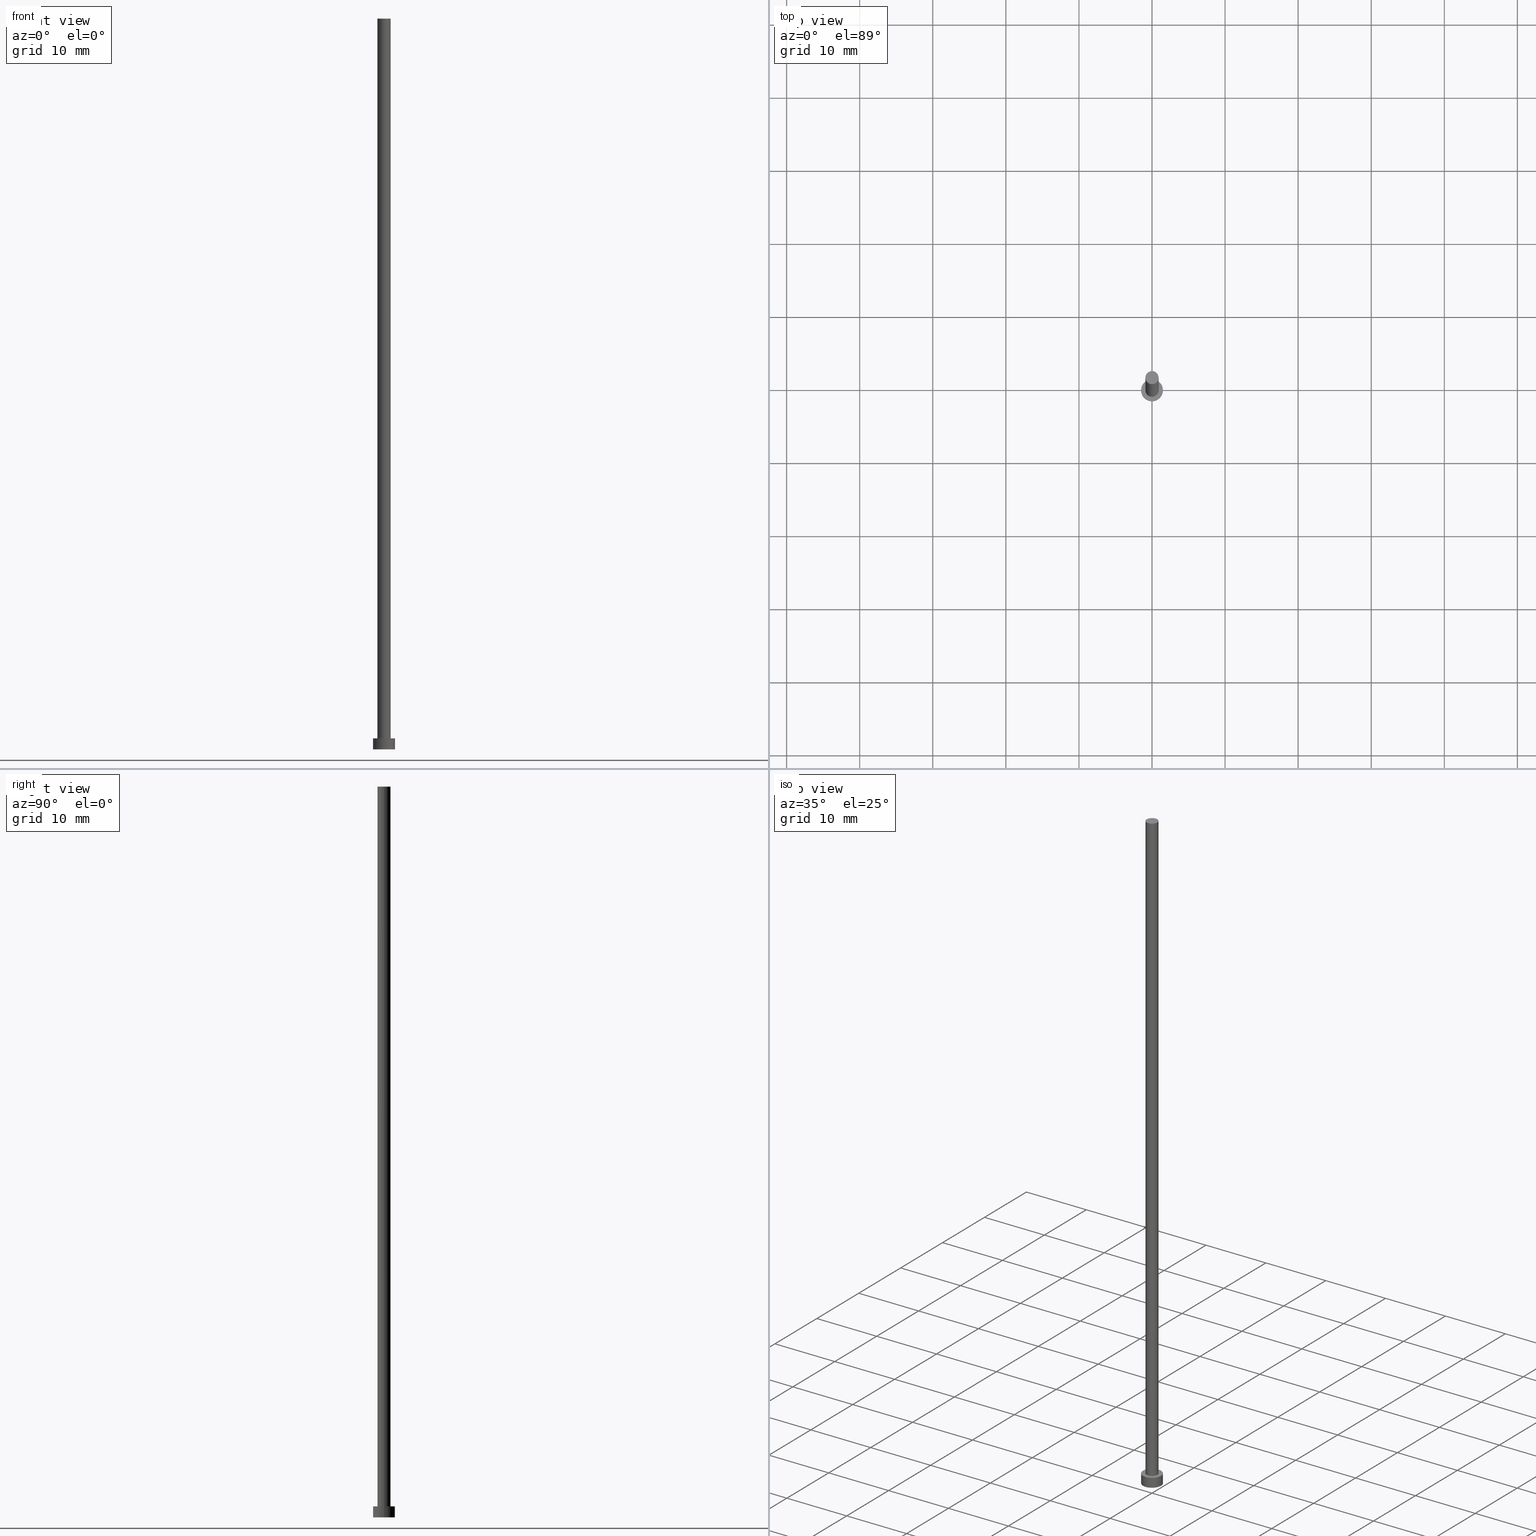
[diagram: canonical four-view strip — front | top / right | iso, engineering-drawing reading convention]
A machine part, canonical four-view strip (front | top / right | iso — engineering-drawing reading convention). The complete STEP part file that produces these views, byte-faithful:
ISO-10303-21;
HEADER;
FILE_DESCRIPTION (( 'STEP AP203' ),
    '1' );
FILE_NAME ('ceaa.STEP',
    '2023-02-13T14:57:31',
    ( '' ),
    ( '' ),
    'SwSTEP 2.0',
    'SolidWorks 2019',
    '' );
FILE_SCHEMA (( 'CONFIG_CONTROL_DESIGN' ));
ENDSEC;

DATA;
#1 = DIRECTION ( 'NONE',  ( -1.000000000000000000, 0.000000000000000000, 0.000000000000000000 ) ) ;
#2 = ORIENTED_EDGE ( 'NONE', *, *, #22, .F. ) ;
#3 = EDGE_LOOP ( 'NONE', ( #76, #69, #252, #17 ) ) ;
#4 = CARTESIAN_POINT ( 'NONE',  ( 0.000000000000000000, 0.000000000000000000, 100.0000000000000000 ) ) ;
#5 = DIRECTION ( 'NONE',  ( 1.000000000000000000, 0.000000000000000000, 0.000000000000000000 ) ) ;
#6 = CARTESIAN_POINT ( 'NONE',  ( 0.000000000000000000, 0.000000000000000000, 100.0000000000000000 ) ) ;
#7 = EDGE_LOOP ( 'NONE', ( #2, #223 ) ) ;
#8 = DIRECTION ( 'NONE',  ( -1.000000000000000000, 0.000000000000000000, 0.000000000000000000 ) ) ;
#9 = PERSON_AND_ORGANIZATION ( #202, #86 ) ;
#10 = CARTESIAN_POINT ( 'NONE',  ( 0.000000000000000000, 0.000000000000000000, 1.500000000000000000 ) ) ;
#11 = VERTEX_POINT ( 'NONE', #41 ) ;
#12 =( NAMED_UNIT ( * ) PLANE_ANGLE_UNIT ( ) SI_UNIT ( $, .RADIAN. ) );
#13 = EDGE_CURVE ( 'NONE', #19, #192, #148, .T. ) ;
#14 = VERTEX_POINT ( 'NONE', #20 ) ;
#15 = APPROVAL_ROLE ( '' ) ;
#16 = LOCAL_TIME ( 15, 57, 31.00000000000000000, #141 ) ;
#17 = ORIENTED_EDGE ( 'NONE', *, *, #87, .T. ) ;
#18 = APPROVAL_STATUS ( 'not_yet_approved' ) ;
#19 = VERTEX_POINT ( 'NONE', #126 ) ;
#20 = CARTESIAN_POINT ( 'NONE',  ( -0.9000000000000000222, 0.000000000000000000, 1.500000000000000000 ) ) ;
#21 = MANIFOLD_SOLID_BREP ( 'P�idat vysunut�m3', #29 ) ;
#22 = EDGE_CURVE ( 'NONE', #104, #178, #169, .T. ) ;
#23 = DIRECTION ( 'NONE',  ( -0.000000000000000000, -0.000000000000000000, -1.000000000000000000 ) ) ;
#24 = DIRECTION ( 'NONE',  ( 0.000000000000000000, 0.000000000000000000, 1.000000000000000000 ) ) ;
#25 = CC_DESIGN_APPROVAL ( #171, ( #248 ) ) ;
#26 = UNCERTAINTY_MEASURE_WITH_UNIT (LENGTH_MEASURE( 1.000000000000000082E-05 ), #173, 'distance_accuracy_value', 'NONE');
#27 = CC_DESIGN_PERSON_AND_ORGANIZATION_ASSIGNMENT ( #232, #139, ( #107 ) ) ;
#28 = CARTESIAN_POINT ( 'NONE',  ( 1.500000000000000222, 1.836970198721030181E-16, 1.500000000000000000 ) ) ;
#29 = CLOSED_SHELL ( 'NONE', ( #50, #163, #238, #135, #183, #43, #199 ) ) ;
#30 = ORIENTED_EDGE ( 'NONE', *, *, #91, .F. ) ;
#31 = CC_DESIGN_APPROVAL ( #194, ( #205 ) ) ;
#32 = APPROVAL_STATUS ( 'not_yet_approved' ) ;
#33 = APPLICATION_PROTOCOL_DEFINITION ( 'international standard', 'config_control_design', 1994, #220 ) ;
#34 = CARTESIAN_POINT ( 'NONE',  ( 0.000000000000000000, 0.000000000000000000, 1.500000000000000000 ) ) ;
#35 = VECTOR ( 'NONE', #51, 1000.000000000000000 ) ;
#36 = AXIS2_PLACEMENT_3D ( 'NONE', #108, #24, #66 ) ;
#37 = PERSON_AND_ORGANIZATION ( #202, #86 ) ;
#38 = EDGE_CURVE ( 'NONE', #214, #14, #255, .T. ) ;
#39 = EDGE_LOOP ( 'NONE', ( #112, #230 ) ) ;
#40 = PERSON_AND_ORGANIZATION ( #202, #86 ) ;
#41 = CARTESIAN_POINT ( 'NONE',  ( -1.500000000000000222, 0.000000000000000000, 1.500000000000000000 ) ) ;
#42 = DIRECTION ( 'NONE',  ( 0.000000000000000000, 0.000000000000000000, 1.000000000000000000 ) ) ;
#43 = ADVANCED_FACE ( 'NONE', ( #162 ), #109, .T. ) ;
#44 = DATE_AND_TIME ( #144, #236 ) ;
#45 = FACE_OUTER_BOUND ( 'NONE', #57, .T. ) ;
#46 = ORIENTED_EDGE ( 'NONE', *, *, #22, .T. ) ;
#47 = APPROVAL ( #18, 'NEUR�EN�' ) ;
#48 = CIRCLE ( 'NONE', #106, 0.9000000000000000222 ) ;
#49 = DIRECTION ( 'NONE',  ( 0.000000000000000000, 0.000000000000000000, 1.000000000000000000 ) ) ;
#50 = ADVANCED_FACE ( 'NONE', ( #45 ), #197, .T. ) ;
#51 = DIRECTION ( 'NONE',  ( -0.000000000000000000, -0.000000000000000000, -1.000000000000000000 ) ) ;
#52 = DIRECTION ( 'NONE',  ( -1.000000000000000000, 0.000000000000000000, 0.000000000000000000 ) ) ;
#53 = APPLICATION_CONTEXT ( 'configuration controlled 3d designs of mechanical parts and assemblies' ) ;
#54 = PERSON_AND_ORGANIZATION_ROLE ( 'design_owner' ) ;
#55 = COORDINATED_UNIVERSAL_TIME_OFFSET ( 1, 0, .AHEAD. ) ;
#56 = CARTESIAN_POINT ( 'NONE',  ( 0.000000000000000000, 0.000000000000000000, 0.000000000000000000 ) ) ;
#57 = EDGE_LOOP ( 'NONE', ( #30, #125, #85, #129 ) ) ;
#58 = CARTESIAN_POINT ( 'NONE',  ( 0.9000000000000000222, 1.102182119232617788E-16, 100.0000000000000000 ) ) ;
#59 = CALENDAR_DATE ( 2023, 13, 2 ) ;
#60 = VERTEX_POINT ( 'NONE', #28 ) ;
#61 = CC_DESIGN_PERSON_AND_ORGANIZATION_ASSIGNMENT ( #117, #54, ( #136 ) ) ;
#62 = PERSON_AND_ORGANIZATION_ROLE ( 'creator' ) ;
#63 = PLANE ( 'NONE',  #208 ) ;
#64 = CALENDAR_DATE ( 2023, 13, 2 ) ;
#65 = FACE_OUTER_BOUND ( 'NONE', #190, .T. ) ;
#66 = DIRECTION ( 'NONE',  ( 1.000000000000000000, 0.000000000000000000, 0.000000000000000000 ) ) ;
#67 = AXIS2_PLACEMENT_3D ( 'NONE', #231, #242, #227 ) ;
#68 = PERSON_AND_ORGANIZATION ( #202, #86 ) ;
#69 = ORIENTED_EDGE ( 'NONE', *, *, #114, .F. ) ;
#70 = CARTESIAN_POINT ( 'NONE',  ( 0.000000000000000000, 0.000000000000000000, 1.500000000000000000 ) ) ;
#71 = DIRECTION ( 'NONE',  ( 1.000000000000000000, 0.000000000000000000, 0.000000000000000000 ) ) ;
#72 = CC_DESIGN_PERSON_AND_ORGANIZATION_ASSIGNMENT ( #37, #77, ( #107 ) ) ;
#73 =( NAMED_UNIT ( * ) SI_UNIT ( $, .STERADIAN. ) SOLID_ANGLE_UNIT ( ) );
#74 = DIRECTION ( 'NONE',  ( 1.000000000000000000, 0.000000000000000000, 0.000000000000000000 ) ) ;
#75 = AXIS2_PLACEMENT_3D ( 'NONE', #209, #206, #121 ) ;
#76 = ORIENTED_EDGE ( 'NONE', *, *, #13, .F. ) ;
#77 = PERSON_AND_ORGANIZATION_ROLE ( 'creator' ) ;
#78 = CARTESIAN_POINT ( 'NONE',  ( 0.000000000000000000, 0.000000000000000000, 100.0000000000000000 ) ) ;
#79 = PERSON_AND_ORGANIZATION ( #202, #86 ) ;
#80 = CIRCLE ( 'NONE', #203, 0.9000000000000000222 ) ;
#81 = APPROVAL_PERSON_ORGANIZATION ( #40, #171, #15 ) ;
#82 = ORIENTED_EDGE ( 'NONE', *, *, #243, .T. ) ;
#83 = PERSON_AND_ORGANIZATION ( #202, #86 ) ;
#84 = COORDINATED_UNIVERSAL_TIME_OFFSET ( 1, 0, .AHEAD. ) ;
#85 = ORIENTED_EDGE ( 'NONE', *, *, #219, .T. ) ;
#86 = ORGANIZATION ( 'NEUR�EN�', 'NEUR�EN�', '' ) ;
#87 = EDGE_CURVE ( 'NONE', #14, #192, #48, .T. ) ;
#88 = CARTESIAN_POINT ( 'NONE',  ( 0.000000000000000000, 0.000000000000000000, 100.0000000000000000 ) ) ;
#89 = CARTESIAN_POINT ( 'NONE',  ( 1.500000000000000222, 1.836970198721030181E-16, 1.500000000000000000 ) ) ;
#90 = ORIENTED_EDGE ( 'NONE', *, *, #224, .T. ) ;
#91 = EDGE_CURVE ( 'NONE', #19, #214, #184, .T. ) ;
#92 = DIRECTION ( 'NONE',  ( 1.000000000000000000, 0.000000000000000000, 0.000000000000000000 ) ) ;
#93 = EDGE_LOOP ( 'NONE', ( #103, #115, #82, #46 ) ) ;
#94 = AXIS2_PLACEMENT_3D ( 'NONE', #6, #49, #239 ) ;
#95 = APPROVAL_STATUS ( 'not_yet_approved' ) ;
#96 = PLANE ( 'NONE',  #237 ) ;
#97 = CARTESIAN_POINT ( 'NONE',  ( -1.500000000000000222, 0.000000000000000000, 1.500000000000000000 ) ) ;
#98 = APPLICATION_PROTOCOL_DEFINITION ( 'international standard', 'config_control_design', 1994, #53 ) ;
#99 = VECTOR ( 'NONE', #165, 1000.000000000000000 ) ;
#100 = CIRCLE ( 'NONE', #137, 1.500000000000000222 ) ;
#101 = SHAPE_DEFINITION_REPRESENTATION ( #188, #240 ) ;
#102 = DIRECTION ( 'NONE',  ( 0.000000000000000000, 0.000000000000000000, 1.000000000000000000 ) ) ;
#103 = ORIENTED_EDGE ( 'NONE', *, *, #122, .F. ) ;
#104 = VERTEX_POINT ( 'NONE', #186 ) ;
#105 = CARTESIAN_POINT ( 'NONE',  ( 1.500000000000000222, 1.836970198721030181E-16, 0.000000000000000000 ) ) ;
#106 = AXIS2_PLACEMENT_3D ( 'NONE', #116, #201, #5 ) ;
#107 = PRODUCT_DEFINITION_FORMATION_WITH_SPECIFIED_SOURCE ( 'LIBOVOLN�', '', #136, .NOT_KNOWN. ) ;
#108 = CARTESIAN_POINT ( 'NONE',  ( 0.000000000000000000, 0.000000000000000000, 0.000000000000000000 ) ) ;
#109 = CYLINDRICAL_SURFACE ( 'NONE', #164, 0.9000000000000000222 ) ;
#110 = DIRECTION ( 'NONE',  ( 1.000000000000000000, 0.000000000000000000, 0.000000000000000000 ) ) ;
#111 = CIRCLE ( 'NONE', #179, 1.500000000000000222 ) ;
#112 = ORIENTED_EDGE ( 'NONE', *, *, #87, .F. ) ;
#113 = LINE ( 'NONE', #89, #99 ) ;
#114 = EDGE_CURVE ( 'NONE', #214, #19, #80, .T. ) ;
#115 = ORIENTED_EDGE ( 'NONE', *, *, #156, .F. ) ;
#116 = CARTESIAN_POINT ( 'NONE',  ( 0.000000000000000000, 0.000000000000000000, 1.500000000000000000 ) ) ;
#117 = PERSON_AND_ORGANIZATION ( #202, #86 ) ;
#118 = DATE_TIME_ROLE ( 'creation_date' ) ;
#119 = AXIS2_PLACEMENT_3D ( 'NONE', #215, #127, #110 ) ;
#120 = CALENDAR_DATE ( 2023, 13, 2 ) ;
#121 = DIRECTION ( 'NONE',  ( 1.000000000000000000, 0.000000000000000000, 0.000000000000000000 ) ) ;
#122 = EDGE_CURVE ( 'NONE', #60, #178, #113, .T. ) ;
#123 = LOCAL_TIME ( 15, 57, 31.00000000000000000, #55 ) ;
#124 = DIRECTION ( 'NONE',  ( 0.000000000000000000, 0.000000000000000000, 1.000000000000000000 ) ) ;
#125 = ORIENTED_EDGE ( 'NONE', *, *, #13, .T. ) ;
#126 = CARTESIAN_POINT ( 'NONE',  ( 0.9000000000000000222, 1.102182119232617788E-16, 100.0000000000000000 ) ) ;
#127 = DIRECTION ( 'NONE',  ( 0.000000000000000000, 0.000000000000000000, 1.000000000000000000 ) ) ;
#128 = CARTESIAN_POINT ( 'NONE',  ( 0.000000000000000000, 0.000000000000000000, 0.000000000000000000 ) ) ;
#129 = ORIENTED_EDGE ( 'NONE', *, *, #38, .F. ) ;
#130 = FACE_OUTER_BOUND ( 'NONE', #93, .T. ) ;
#131 = PRODUCT_RELATED_PRODUCT_CATEGORY ( 'detail', '', ( #136 ) ) ;
#132 = DIRECTION ( 'NONE',  ( 1.000000000000000000, 0.000000000000000000, 0.000000000000000000 ) ) ;
#133 = CIRCLE ( 'NONE', #119, 0.9000000000000000222 ) ;
#134 = LOCAL_TIME ( 15, 57, 31.00000000000000000, #84 ) ;
#135 = ADVANCED_FACE ( 'NONE', ( #187, #166 ), #96, .T. ) ;
#136 = PRODUCT ( 'ceaa', 'ceaa', '', ( #247 ) ) ;
#137 = AXIS2_PLACEMENT_3D ( 'NONE', #70, #225, #132 ) ;
#138 = COORDINATED_UNIVERSAL_TIME_OFFSET ( 1, 0, .AHEAD. ) ;
#139 = PERSON_AND_ORGANIZATION_ROLE ( 'design_supplier' ) ;
#140 = DIRECTION ( 'NONE',  ( 0.000000000000000000, 0.000000000000000000, 1.000000000000000000 ) ) ;
#141 = COORDINATED_UNIVERSAL_TIME_OFFSET ( 1, 0, .AHEAD. ) ;
#142 = APPROVAL_PERSON_ORGANIZATION ( #9, #194, #244 ) ;
#143 = FACE_OUTER_BOUND ( 'NONE', #7, .T. ) ;
#144 = CALENDAR_DATE ( 2023, 13, 2 ) ;
#145 = PLANE ( 'NONE',  #222 ) ;
#146 = CARTESIAN_POINT ( 'NONE',  ( -0.9000000000000000222, 0.000000000000000000, 100.0000000000000000 ) ) ;
#147 = ORIENTED_EDGE ( 'NONE', *, *, #224, .F. ) ;
#148 = LINE ( 'NONE', #58, #159 ) ;
#149 = ORIENTED_EDGE ( 'NONE', *, *, #122, .T. ) ;
#150 = CARTESIAN_POINT ( 'NONE',  ( 0.000000000000000000, 0.000000000000000000, 1.500000000000000000 ) ) ;
#151 = APPROVAL_PERSON_ORGANIZATION ( #68, #47, #189 ) ;
#152 = DIRECTION ( 'NONE',  ( 0.000000000000000000, 0.000000000000000000, 1.000000000000000000 ) ) ;
#153 = EDGE_CURVE ( 'NONE', #178, #104, #253, .T. ) ;
#154 = DIRECTION ( 'NONE',  ( -0.000000000000000000, -0.000000000000000000, -1.000000000000000000 ) ) ;
#155 = DATE_AND_TIME ( #157, #16 ) ;
#156 = EDGE_CURVE ( 'NONE', #11, #60, #111, .T. ) ;
#157 = CALENDAR_DATE ( 2023, 13, 2 ) ;
#158 = EDGE_LOOP ( 'NONE', ( #217, #90 ) ) ;
#159 = VECTOR ( 'NONE', #198, 1000.000000000000000 ) ;
#160 = AXIS2_PLACEMENT_3D ( 'NONE', #150, #221, #8 ) ;
#161 = CARTESIAN_POINT ( 'NONE',  ( 0.9000000000000000222, 1.102182119232617788E-16, 1.500000000000000000 ) ) ;
#162 = FACE_OUTER_BOUND ( 'NONE', #3, .T. ) ;
#163 = ADVANCED_FACE ( 'NONE', ( #191 ), #207, .T. ) ;
#164 = AXIS2_PLACEMENT_3D ( 'NONE', #88, #182, #1 ) ;
#165 = DIRECTION ( 'NONE',  ( -0.000000000000000000, -0.000000000000000000, -1.000000000000000000 ) ) ;
#166 = FACE_OUTER_BOUND ( 'NONE', #158, .T. ) ;
#167 = CYLINDRICAL_SURFACE ( 'NONE', #160, 1.500000000000000222 ) ;
#168 = LINE ( 'NONE', #97, #35 ) ;
#169 = CIRCLE ( 'NONE', #36, 1.500000000000000222 ) ;
#170 = CARTESIAN_POINT ( 'NONE',  ( 0.000000000000000000, 0.000000000000000000, 1.500000000000000000 ) ) ;
#171 = APPROVAL ( #32, 'NEUR�EN�' ) ;
#172 = ORIENTED_EDGE ( 'NONE', *, *, #153, .T. ) ;
#173 =( LENGTH_UNIT ( ) NAMED_UNIT ( * ) SI_UNIT ( .MILLI., .METRE. ) );
#174 = VECTOR ( 'NONE', #23, 1000.000000000000000 ) ;
#175 = DIRECTION ( 'NONE',  ( 0.000000000000000000, 0.000000000000000000, 1.000000000000000000 ) ) ;
#176 = CC_DESIGN_DATE_AND_TIME_ASSIGNMENT ( #44, #118, ( #205 ) ) ;
#177 = APPROVAL_DATE_TIME ( #155, #47 ) ;
#178 = VERTEX_POINT ( 'NONE', #105 ) ;
#179 = AXIS2_PLACEMENT_3D ( 'NONE', #34, #124, #71 ) ;
#180 = ORIENTED_EDGE ( 'NONE', *, *, #243, .F. ) ;
#181 = CC_DESIGN_DATE_AND_TIME_ASSIGNMENT ( #228, #245, ( #248 ) ) ;
#182 = DIRECTION ( 'NONE',  ( -0.000000000000000000, -0.000000000000000000, -1.000000000000000000 ) ) ;
#183 = ADVANCED_FACE ( 'NONE', ( #143 ), #63, .F. ) ;
#184 = CIRCLE ( 'NONE', #94, 0.9000000000000000222 ) ;
#185 = DESIGN_CONTEXT ( 'detailed design', #220, 'design' ) ;
#186 = CARTESIAN_POINT ( 'NONE',  ( -1.500000000000000222, 0.000000000000000000, 0.000000000000000000 ) ) ;
#187 = FACE_BOUND ( 'NONE', #39, .T. ) ;
#188 = PRODUCT_DEFINITION_SHAPE ( 'NONE', 'NONE',  #205 ) ;
#189 = APPROVAL_ROLE ( '' ) ;
#190 = EDGE_LOOP ( 'NONE', ( #218, #200 ) ) ;
#191 = FACE_OUTER_BOUND ( 'NONE', #196, .T. ) ;
#192 = VERTEX_POINT ( 'NONE', #161 ) ;
#193 = APPROVAL_DATE_TIME ( #213, #171 ) ;
#194 = APPROVAL ( #95, 'NEUR�EN�' ) ;
#195 = DIRECTION ( 'NONE',  ( 1.000000000000000000, 0.000000000000000000, -0.000000000000000000 ) ) ;
#196 = EDGE_LOOP ( 'NONE', ( #147, #149, #172, #180 ) ) ;
#197 = CYLINDRICAL_SURFACE ( 'NONE', #67, 0.9000000000000000222 ) ;
#198 = DIRECTION ( 'NONE',  ( -0.000000000000000000, -0.000000000000000000, -1.000000000000000000 ) ) ;
#199 = ADVANCED_FACE ( 'NONE', ( #65 ), #145, .T. ) ;
#200 = ORIENTED_EDGE ( 'NONE', *, *, #91, .T. ) ;
#201 = DIRECTION ( 'NONE',  ( 0.000000000000000000, 0.000000000000000000, 1.000000000000000000 ) ) ;
#202 = PERSON ( 'NEUR�EN�', 'NEUR�EN�', 'NEUR�EN�', ('NEUR�EN�'), ('NEUR�EN�'), ('NEUR�EN�') ) ;
#203 = AXIS2_PLACEMENT_3D ( 'NONE', #4, #152, #92 ) ;
#204 = LOCAL_TIME ( 15, 57, 31.00000000000000000, #138 ) ;
#205 = PRODUCT_DEFINITION ( 'NEZN�M�', '', #107, #185 ) ;
#206 = DIRECTION ( 'NONE',  ( 0.000000000000000000, 0.000000000000000000, 1.000000000000000000 ) ) ;
#207 = CYLINDRICAL_SURFACE ( 'NONE', #234, 1.500000000000000222 ) ;
#208 = AXIS2_PLACEMENT_3D ( 'NONE', #128, #42, #250 ) ;
#209 = CARTESIAN_POINT ( 'NONE',  ( 0.000000000000000000, 0.000000000000000000, 0.000000000000000000 ) ) ;
#210 = SECURITY_CLASSIFICATION_LEVEL ( 'unclassified' ) ;
#211 = AXIS2_PLACEMENT_3D ( 'NONE', #56, #140, #74 ) ;
#212 = COORDINATED_UNIVERSAL_TIME_OFFSET ( 1, 0, .AHEAD. ) ;
#213 = DATE_AND_TIME ( #120, #204 ) ;
#214 = VERTEX_POINT ( 'NONE', #146 ) ;
#215 = CARTESIAN_POINT ( 'NONE',  ( 0.000000000000000000, 0.000000000000000000, 1.500000000000000000 ) ) ;
#216 = CARTESIAN_POINT ( 'NONE',  ( -0.9000000000000000222, 0.000000000000000000, 100.0000000000000000 ) ) ;
#217 = ORIENTED_EDGE ( 'NONE', *, *, #156, .T. ) ;
#218 = ORIENTED_EDGE ( 'NONE', *, *, #114, .T. ) ;
#219 = EDGE_CURVE ( 'NONE', #192, #14, #133, .T. ) ;
#220 = APPLICATION_CONTEXT ( 'configuration controlled 3d designs of mechanical parts and assemblies' ) ;
#221 = DIRECTION ( 'NONE',  ( -0.000000000000000000, -0.000000000000000000, -1.000000000000000000 ) ) ;
#222 = AXIS2_PLACEMENT_3D ( 'NONE', #78, #102, #195 ) ;
#223 = ORIENTED_EDGE ( 'NONE', *, *, #153, .F. ) ;
#224 = EDGE_CURVE ( 'NONE', #60, #11, #100, .T. ) ;
#225 = DIRECTION ( 'NONE',  ( 0.000000000000000000, 0.000000000000000000, 1.000000000000000000 ) ) ;
#226 = CC_DESIGN_APPROVAL ( #47, ( #107 ) ) ;
#227 = DIRECTION ( 'NONE',  ( -1.000000000000000000, 0.000000000000000000, 0.000000000000000000 ) ) ;
#228 = DATE_AND_TIME ( #59, #123 ) ;
#229 = APPROVAL_DATE_TIME ( #235, #194 ) ;
#230 = ORIENTED_EDGE ( 'NONE', *, *, #219, .F. ) ;
#231 = CARTESIAN_POINT ( 'NONE',  ( 0.000000000000000000, 0.000000000000000000, 100.0000000000000000 ) ) ;
#232 = PERSON_AND_ORGANIZATION ( #202, #86 ) ;
#233 = CC_DESIGN_PERSON_AND_ORGANIZATION_ASSIGNMENT ( #79, #251, ( #248 ) ) ;
#234 = AXIS2_PLACEMENT_3D ( 'NONE', #170, #154, #52 ) ;
#235 = DATE_AND_TIME ( #64, #134 ) ;
#236 = LOCAL_TIME ( 15, 57, 31.00000000000000000, #212 ) ;
#237 = AXIS2_PLACEMENT_3D ( 'NONE', #10, #175, #249 ) ;
#238 = ADVANCED_FACE ( 'NONE', ( #130 ), #167, .T. ) ;
#239 = DIRECTION ( 'NONE',  ( 1.000000000000000000, 0.000000000000000000, 0.000000000000000000 ) ) ;
#240 = ADVANCED_BREP_SHAPE_REPRESENTATION ( 'ceaa', ( #21, #75 ), #254 ) ;
#241 = CC_DESIGN_SECURITY_CLASSIFICATION ( #248, ( #107 ) ) ;
#242 = DIRECTION ( 'NONE',  ( -0.000000000000000000, -0.000000000000000000, -1.000000000000000000 ) ) ;
#243 = EDGE_CURVE ( 'NONE', #11, #104, #168, .T. ) ;
#244 = APPROVAL_ROLE ( '' ) ;
#245 = DATE_TIME_ROLE ( 'classification_date' ) ;
#246 = CC_DESIGN_PERSON_AND_ORGANIZATION_ASSIGNMENT ( #83, #62, ( #205 ) ) ;
#247 = MECHANICAL_CONTEXT ( 'NONE', #53, 'mechanical' ) ;
#248 = SECURITY_CLASSIFICATION ( '', '', #210 ) ;
#249 = DIRECTION ( 'NONE',  ( 1.000000000000000000, 0.000000000000000000, -0.000000000000000000 ) ) ;
#250 = DIRECTION ( 'NONE',  ( 1.000000000000000000, 0.000000000000000000, -0.000000000000000000 ) ) ;
#251 = PERSON_AND_ORGANIZATION_ROLE ( 'classification_officer' ) ;
#252 = ORIENTED_EDGE ( 'NONE', *, *, #38, .T. ) ;
#253 = CIRCLE ( 'NONE', #211, 1.500000000000000222 ) ;
#254 =( GEOMETRIC_REPRESENTATION_CONTEXT ( 3 ) GLOBAL_UNCERTAINTY_ASSIGNED_CONTEXT ( ( #26 ) ) GLOBAL_UNIT_ASSIGNED_CONTEXT ( ( #173, #12, #73 ) ) REPRESENTATION_CONTEXT ( 'NONE', 'WORKASPACE' ) );
#255 = LINE ( 'NONE', #216, #174 ) ;
ENDSEC;
END-ISO-10303-21;
